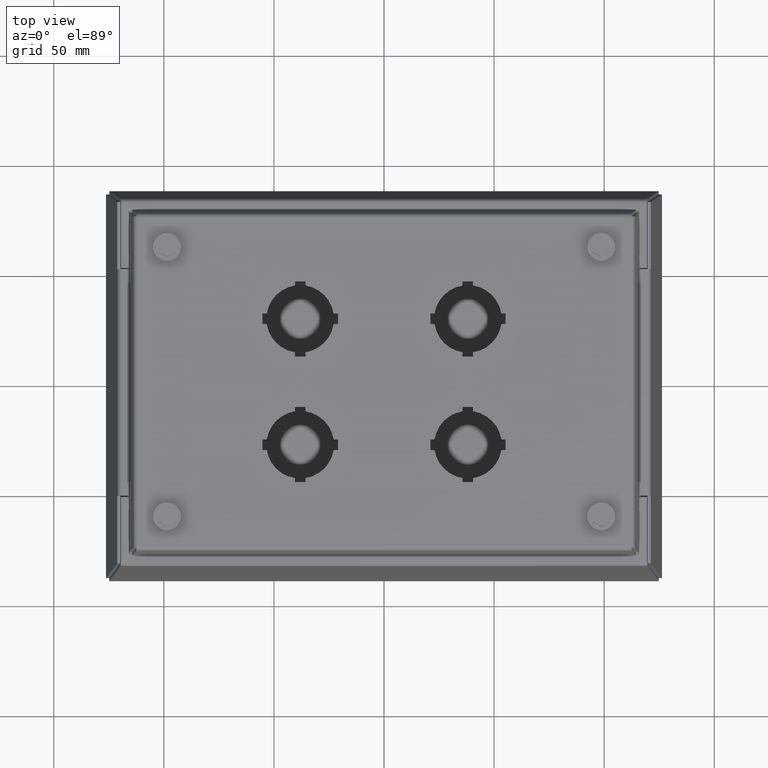
[diagram: clean part render]
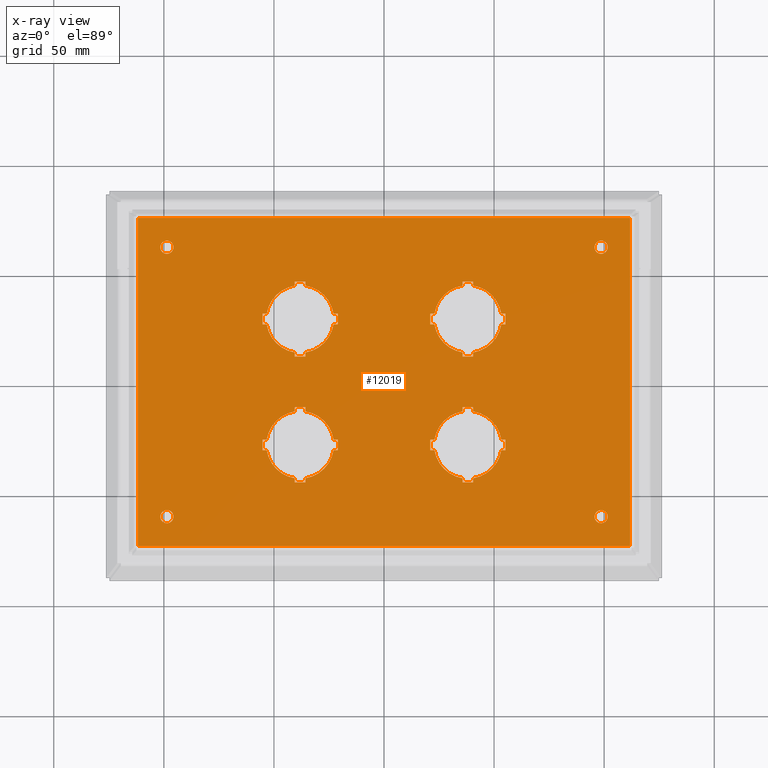
[diagram: x-ray — body ghosted, one internal face saturated and labeled with its STEP entity id]
A machine part, top view, then the same camera in x-ray: the body is ghosted and one INTERNAL B-rep face — a face not visible from any outside direction — is saturated and labeled: STEP entity #12019.
In plain terms, the highlighted planar face has unit normal (0, 0, -1).
Its self-contained STEP definition (entity closure, byte-faithful):
#37 = ORIENTED_EDGE ( 'NONE', *, *, #1536, .T. ) ;
#95 = EDGE_CURVE ( 'NONE', #11494, #2834, #1126, .T. ) ;
#138 = VERTEX_POINT ( 'NONE', #448 ) ;
#211 = ORIENTED_EDGE ( 'NONE', *, *, #6357, .T. ) ;
#215 = VERTEX_POINT ( 'NONE', #1704 ) ;
#245 = CARTESIAN_POINT ( 'NONE',  ( -3.883000000000000451, -2.409500000000000419, 4.474999999999999645 ) ) ;
#288 = VECTOR ( 'NONE', #6099, 39.37007874015748143 ) ;
#327 = CARTESIAN_POINT ( 'NONE',  ( 2.171999999999999709, 1.030000000000000027, 4.475000000000000533 ) ) ;
#346 = VECTOR ( 'NONE', #13794, 39.37007874015748143 ) ;
#385 = LINE ( 'NONE', #5066, #965 ) ;
#428 = ORIENTED_EDGE ( 'NONE', *, *, #1329, .T. ) ;
#434 = VECTOR ( 'NONE', #10299, 39.37007874015748143 ) ;
#435 = CARTESIAN_POINT ( 'NONE',  ( -0.9025052301484176587, 1.030000000000000027, 4.475000000000000533 ) ) ;
#448 = CARTESIAN_POINT ( 'NONE',  ( 0.8280000000000120597, 1.029999999999999805, 4.475000000000000533 ) ) ;
#453 = CIRCLE ( 'NONE', #4927, 0.6049999999999959854 ) ;
#496 = EDGE_LOOP ( 'NONE', ( #9526 ) ) ;
#562 = VERTEX_POINT ( 'NONE', #13361 ) ;
#569 = CARTESIAN_POINT ( 'NONE',  ( 1.595000000000004192, 3.006499999999999950, 4.475000000000000533 ) ) ;
#573 = CARTESIAN_POINT ( 'NONE',  ( 2.171999999999999709, 1.219999999999999751, 4.475000000000000533 ) ) ;
#584 = DIRECTION ( 'NONE',  ( -1.000000000000000000, -0.000000000000000000, -0.000000000000000000 ) ) ;
#636 = CARTESIAN_POINT ( 'NONE',  ( 1.405000000000004245, -1.796999999999996378, 4.475000000000000533 ) ) ;
#680 = CARTESIAN_POINT ( 'NONE',  ( 0.8280000000000120597, -1.030000000000000471, 4.475000000000000533 ) ) ;
#697 = EDGE_CURVE ( 'NONE', #7405, #7462, #9478, .T. ) ;
#706 = ORIENTED_EDGE ( 'NONE', *, *, #6515, .T. ) ;
#708 = AXIS2_PLACEMENT_3D ( 'NONE', #3196, #15098, #4530 ) ;
#745 = CARTESIAN_POINT ( 'NONE',  ( -1.500000000000000222, -1.125000000000000222, 4.475000000000000533 ) ) ;
#749 = CARTESIAN_POINT ( 'NONE',  ( 1.500000000000003997, 1.124999999999999778, 4.475000000000000533 ) ) ;
#788 = ORIENTED_EDGE ( 'NONE', *, *, #5558, .T. ) ;
#795 = LINE ( 'NONE', #6019, #288 ) ;
#801 = CARTESIAN_POINT ( 'NONE',  ( 0.9025052301484214334, 1.219999999999999751, 4.475000000000000533 ) ) ;
#803 = CARTESIAN_POINT ( 'NONE',  ( -1.404999999999999805, 3.006499999999999950, 4.475000000000000533 ) ) ;
#816 = CARTESIAN_POINT ( 'NONE',  ( -4.472999999999999865, 3.006499999999999950, 4.475000000000000533 ) ) ;
#880 = ORIENTED_EDGE ( 'NONE', *, *, #2976, .T. ) ;
#888 = DIRECTION ( 'NONE',  ( 3.612360983357727291E-15, 1.000000000000000000, 0.000000000000000000 ) ) ;
#965 = VECTOR ( 'NONE', #5142, 39.37007874015748143 ) ;
#1027 = ORIENTED_EDGE ( 'NONE', *, *, #8549, .T. ) ;
#1031 = DIRECTION ( 'NONE',  ( 0.000000000000000000, 1.000000000000000000, 0.000000000000000000 ) ) ;
#1054 = EDGE_CURVE ( 'NONE', #12107, #7405, #13160, .T. ) ;
#1086 = ORIENTED_EDGE ( 'NONE', *, *, #2337, .T. ) ;
#1126 = CIRCLE ( 'NONE', #9126, 0.6049999999999959854 ) ;
#1132 = LINE ( 'NONE', #12721, #10661 ) ;
#1159 = EDGE_CURVE ( 'NONE', #2191, #2913, #13365, .T. ) ;
#1169 = VECTOR ( 'NONE', #1771, 39.37007874015748143 ) ;
#1179 = VECTOR ( 'NONE', #9270, 39.37007874015748143 ) ;
#1196 = ORIENTED_EDGE ( 'NONE', *, *, #13595, .T. ) ;
#1197 = CARTESIAN_POINT ( 'NONE',  ( -1.594999999999995977, 0.4530000000000037330, 4.475000000000000533 ) ) ;
#1207 = EDGE_CURVE ( 'NONE', #1608, #9326, #4987, .T. ) ;
#1228 = DIRECTION ( 'NONE',  ( -0.000000000000000000, -1.000000000000000000, -1.224646799147350002E-16 ) ) ;
#1278 = LINE ( 'NONE', #6054, #12782 ) ;
#1329 = EDGE_CURVE ( 'NONE', #562, #14545, #7786, .T. ) ;
#1335 = CIRCLE ( 'NONE', #6084, 0.6049999999999960965 ) ;
#1337 = EDGE_CURVE ( 'NONE', #11963, #10132, #12499, .T. ) ;
#1341 = VECTOR ( 'NONE', #5581, 39.37007874015748143 ) ;
#1353 = EDGE_CURVE ( 'NONE', #15452, #3893, #8885, .T. ) ;
#1398 = DIRECTION ( 'NONE',  ( -1.000000000000000000, -0.000000000000000000, -0.000000000000000000 ) ) ;
#1414 = VERTEX_POINT ( 'NONE', #4572 ) ;
#1433 = FACE_OUTER_BOUND ( 'NONE', #3320, .T. ) ;
#1435 = EDGE_CURVE ( 'NONE', #10955, #11120, #1132, .T. ) ;
#1448 = CARTESIAN_POINT ( 'NONE',  ( -2.171999999999992159, 1.030000000000000027, 4.475000000000000533 ) ) ;
#1456 = LINE ( 'NONE', #13432, #1749 ) ;
#1482 = LINE ( 'NONE', #14854, #6447 ) ;
#1492 = AXIS2_PLACEMENT_3D ( 'NONE', #6428, #11349, #5319 ) ;
#1502 = CARTESIAN_POINT ( 'NONE',  ( -4.472999999999999865, 1.219999999999999751, 4.475000000000000533 ) ) ;
#1519 = VECTOR ( 'NONE', #5390, 39.37007874015748143 ) ;
#1524 = CARTESIAN_POINT ( 'NONE',  ( -1.404999999999999805, 3.006499999999999950, 4.475000000000000533 ) ) ;
#1536 = EDGE_CURVE ( 'NONE', #2913, #13760, #5599, .T. ) ;
#1566 = ORIENTED_EDGE ( 'NONE', *, *, #14661, .T. ) ;
#1596 = LINE ( 'NONE', #14891, #15336 ) ;
#1608 = VERTEX_POINT ( 'NONE', #9587 ) ;
#1643 = DIRECTION ( 'NONE',  ( 0.000000000000000000, 1.000000000000000000, 1.224646799147350002E-16 ) ) ;
#1678 = EDGE_CURVE ( 'NONE', #14056, #11668, #7463, .T. ) ;
#1704 = CARTESIAN_POINT ( 'NONE',  ( 1.405000000000004245, -1.722494769851582896, 4.475000000000000533 ) ) ;
#1737 = CARTESIAN_POINT ( 'NONE',  ( -1.404999999999999805, 0.4530000000000037330, 4.475000000000000533 ) ) ;
#1739 = EDGE_CURVE ( 'NONE', #12655, #5992, #453, .T. ) ;
#1741 = CARTESIAN_POINT ( 'NONE',  ( -1.594999999999995977, 1.722494769851582674, 4.475000000000000533 ) ) ;
#1748 = DIRECTION ( 'NONE',  ( -0.000000000000000000, -1.224646799147350002E-16, 1.000000000000000000 ) ) ;
#1749 = VECTOR ( 'NONE', #12548, 39.37007874015748143 ) ;
#1771 = DIRECTION ( 'NONE',  ( 1.000000000000000000, 0.000000000000000000, 0.000000000000000000 ) ) ;
#1786 = CARTESIAN_POINT ( 'NONE',  ( 3.883000000000000451, -2.409500000000000419, 4.474999999999999645 ) ) ;
#1816 = LINE ( 'NONE', #7760, #13044 ) ;
#1846 = CARTESIAN_POINT ( 'NONE',  ( 1.405000000000004023, 1.796999999999995934, 4.475000000000000533 ) ) ;
#1865 = ORIENTED_EDGE ( 'NONE', *, *, #1739, .T. ) ;
#1866 = AXIS2_PLACEMENT_3D ( 'NONE', #4869, #3695, #13333 ) ;
#1907 = ORIENTED_EDGE ( 'NONE', *, *, #3860, .T. ) ;
#1947 = AXIS2_PLACEMENT_3D ( 'NONE', #11411, #13904, #15154 ) ;
#1969 = CIRCLE ( 'NONE', #3219, 0.6049999999999959854 ) ;
#1971 = LINE ( 'NONE', #15193, #1341 ) ;
#1975 = ORIENTED_EDGE ( 'NONE', *, *, #15383, .T. ) ;
#2070 = CARTESIAN_POINT ( 'NONE',  ( -4.472999999999999865, -2.934337431718752942, 4.474999999999999645 ) ) ;
#2077 = ORIENTED_EDGE ( 'NONE', *, *, #15170, .T. ) ;
#2138 = ORIENTED_EDGE ( 'NONE', *, *, #3339, .T. ) ;
#2157 = EDGE_CURVE ( 'NONE', #14468, #13733, #8911, .T. ) ;
#2190 = DIRECTION ( 'NONE',  ( -0.000000000000000000, -1.224646799147350002E-16, 1.000000000000000000 ) ) ;
#2191 = VERTEX_POINT ( 'NONE', #13468 ) ;
#2216 = VECTOR ( 'NONE', #7378, 39.37007874015748143 ) ;
#2222 = DIRECTION ( 'NONE',  ( -0.000000000000000000, -1.000000000000000000, -1.224646799147350002E-16 ) ) ;
#2318 = CARTESIAN_POINT ( 'NONE',  ( -2.171999999999992159, -1.030000000000000471, 4.475000000000000533 ) ) ;
#2337 = EDGE_CURVE ( 'NONE', #10031, #215, #10681, .T. ) ;
#2349 = CARTESIAN_POINT ( 'NONE',  ( -0.8280000000000038440, 1.219999999999999751, 4.475000000000000533 ) ) ;
#2355 = VERTEX_POINT ( 'NONE', #9078 ) ;
#2365 = CARTESIAN_POINT ( 'NONE',  ( -4.400837431718739090, 2.934337431718760492, 4.474999999999991651 ) ) ;
#2408 = VERTEX_POINT ( 'NONE', #801 ) ;
#2459 = DIRECTION ( 'NONE',  ( 0.000000000000000000, 1.000000000000000000, 0.000000000000000000 ) ) ;
#2513 = CARTESIAN_POINT ( 'NONE',  ( -3.883000000000000451, 2.409499999999999975, 4.475000000000000533 ) ) ;
#2514 = ORIENTED_EDGE ( 'NONE', *, *, #7347, .T. ) ;
#2560 = EDGE_CURVE ( 'NONE', #215, #5530, #11268, .T. ) ;
#2572 = EDGE_LOOP ( 'NONE', ( #1196 ) ) ;
#2606 = LINE ( 'NONE', #9884, #2216 ) ;
#2626 = EDGE_CURVE ( 'NONE', #14647, #14647, #4689, .T. ) ;
#2637 = CARTESIAN_POINT ( 'NONE',  ( 4.400837431718741755, 3.006499999999999950, 4.475000000000000533 ) ) ;
#2648 = LINE ( 'NONE', #6258, #15254 ) ;
#2654 = LINE ( 'NONE', #14306, #7794 ) ;
#2658 = EDGE_CURVE ( 'NONE', #2355, #11494, #1482, .T. ) ;
#2669 = DIRECTION ( 'NONE',  ( 0.000000000000000000, -1.224646799147350002E-16, 1.000000000000000000 ) ) ;
#2671 = EDGE_CURVE ( 'NONE', #13122, #11963, #14184, .T. ) ;
#2707 = CARTESIAN_POINT ( 'NONE',  ( -1.594999999999995977, 3.006499999999999950, 4.475000000000000533 ) ) ;
#2742 = EDGE_CURVE ( 'NONE', #9914, #8634, #4430, .T. ) ;
#2766 = DIRECTION ( 'NONE',  ( -0.000000000000000000, -1.224646799147350002E-16, 1.000000000000000000 ) ) ;
#2775 = ORIENTED_EDGE ( 'NONE', *, *, #8264, .T. ) ;
#2792 = CARTESIAN_POINT ( 'NONE',  ( -0.8280000000000038440, 3.006499999999999950, 4.475000000000000533 ) ) ;
#2793 = CARTESIAN_POINT ( 'NONE',  ( -1.404999999999999805, -0.4530000000000044547, 4.475000000000000533 ) ) ;
#2834 = VERTEX_POINT ( 'NONE', #3724 ) ;
#2838 = FACE_BOUND ( 'NONE', #10325, .T. ) ;
#2895 = ORIENTED_EDGE ( 'NONE', *, *, #12041, .T. ) ;
#2901 = EDGE_CURVE ( 'NONE', #2408, #11256, #15315, .T. ) ;
#2913 = VERTEX_POINT ( 'NONE', #9523 ) ;
#2930 = DIRECTION ( 'NONE',  ( -0.000000000000000000, -1.224646799147350002E-16, 1.000000000000000000 ) ) ;
#2943 = DIRECTION ( 'NONE',  ( 9.030902458394316255E-16, 1.000000000000000000, 0.000000000000000000 ) ) ;
#2971 = DIRECTION ( 'NONE',  ( 1.000000000000000000, 0.000000000000000000, 0.000000000000000000 ) ) ;
#2976 = EDGE_CURVE ( 'NONE', #5839, #11377, #385, .T. ) ;
#3015 = LINE ( 'NONE', #13886, #14637 ) ;
#3090 = CARTESIAN_POINT ( 'NONE',  ( -0.9025052301484178807, -1.030000000000000471, 4.475000000000000533 ) ) ;
#3109 = ORIENTED_EDGE ( 'NONE', *, *, #7172, .T. ) ;
#3160 = VECTOR ( 'NONE', #3728, 39.37007874015748143 ) ;
#3162 = DIRECTION ( 'NONE',  ( 0.000000000000000000, 1.000000000000000000, 1.224646799147350002E-16 ) ) ;
#3167 = LINE ( 'NONE', #12724, #11265 ) ;
#3196 = CARTESIAN_POINT ( 'NONE',  ( 1.500000000000003997, -1.125000000000000222, 4.475000000000000533 ) ) ;
#3219 = AXIS2_PLACEMENT_3D ( 'NONE', #8355, #5952, #888 ) ;
#3239 = CARTESIAN_POINT ( 'NONE',  ( -4.472999999999999865, 2.934337431718759603, 4.475000000000000533 ) ) ;
#3262 = CIRCLE ( 'NONE', #14011, 0.1175000000000000488 ) ;
#3263 = DIRECTION ( 'NONE',  ( -0.000000000000000000, -1.000000000000000000, -1.224646799147350002E-16 ) ) ;
#3320 = EDGE_LOOP ( 'NONE', ( #7686, #11907, #11854, #37 ) ) ;
#3339 = EDGE_CURVE ( 'NONE', #12052, #15105, #5476, .T. ) ;
#3345 = CARTESIAN_POINT ( 'NONE',  ( 1.500000000000003997, 1.124999999999999778, 4.475000000000000533 ) ) ;
#3346 = LINE ( 'NONE', #11575, #11622 ) ;
#3395 = EDGE_CURVE ( 'NONE', #8634, #4793, #6989, .T. ) ;
#3449 = VERTEX_POINT ( 'NONE', #1197 ) ;
#3459 = CARTESIAN_POINT ( 'NONE',  ( 1.405000000000004245, 3.006499999999999950, 4.475000000000000533 ) ) ;
#3517 = DIRECTION ( 'NONE',  ( -1.000000000000000000, -0.000000000000000000, -0.000000000000000000 ) ) ;
#3560 = LINE ( 'NONE', #6853, #6988 ) ;
#3567 = EDGE_CURVE ( 'NONE', #7705, #12655, #5576, .T. ) ;
#3618 = CARTESIAN_POINT ( 'NONE',  ( 0.8280000000000120597, 3.006499999999999950, 4.475000000000000533 ) ) ;
#3623 = VERTEX_POINT ( 'NONE', #10727 ) ;
#3628 = CARTESIAN_POINT ( 'NONE',  ( 1.500000000000003997, -1.125000000000000222, 4.475000000000000533 ) ) ;
#3630 = DIRECTION ( 'NONE',  ( 0.000000000000000000, 1.000000000000000000, 1.224646799147350002E-16 ) ) ;
#3661 = CARTESIAN_POINT ( 'NONE',  ( -3.883000000000000451, 2.291999999999999815, 4.475000000000000533 ) ) ;
#3668 = CARTESIAN_POINT ( 'NONE',  ( 1.405000000000004023, -0.4530000000000044547, 4.475000000000000533 ) ) ;
#3690 = CARTESIAN_POINT ( 'NONE',  ( -2.097494769851582674, -1.030000000000000471, 4.475000000000000533 ) ) ;
#3695 = DIRECTION ( 'NONE',  ( -0.000000000000000000, -1.224646799147350002E-16, 1.000000000000000000 ) ) ;
#3713 = ORIENTED_EDGE ( 'NONE', *, *, #1054, .T. ) ;
#3724 = CARTESIAN_POINT ( 'NONE',  ( 2.097494769851586227, 1.030000000000000027, 4.475000000000000533 ) ) ;
#3728 = DIRECTION ( 'NONE',  ( 0.000000000000000000, 1.000000000000000000, 1.224646799147350002E-16 ) ) ;
#3747 = CARTESIAN_POINT ( 'NONE',  ( -1.404999999999999805, 0.5275052301484174366, 4.475000000000000533 ) ) ;
#3771 = VERTEX_POINT ( 'NONE', #9647 ) ;
#3783 = VECTOR ( 'NONE', #11413, 39.37007874015748143 ) ;
#3845 = CARTESIAN_POINT ( 'NONE',  ( 3.883000000000000451, 2.409499999999999975, 4.475000000000000533 ) ) ;
#3846 = VERTEX_POINT ( 'NONE', #8565 ) ;
#3856 = CARTESIAN_POINT ( 'NONE',  ( 2.097494769851586227, -1.030000000000000471, 4.475000000000000533 ) ) ;
#3860 = EDGE_CURVE ( 'NONE', #14350, #13122, #1456, .T. ) ;
#3893 = VERTEX_POINT ( 'NONE', #6241 ) ;
#3919 = AXIS2_PLACEMENT_3D ( 'NONE', #3345, #9444, #14214 ) ;
#3985 = ORIENTED_EDGE ( 'NONE', *, *, #8322, .T. ) ;
#3996 = CARTESIAN_POINT ( 'NONE',  ( -1.594999999999995977, -1.722494769851583341, 4.475000000000000533 ) ) ;
#4017 = FACE_BOUND ( 'NONE', #12082, .T. ) ;
#4057 = CARTESIAN_POINT ( 'NONE',  ( -4.400837431718740866, 3.006499999999999950, 4.475000000000000533 ) ) ;
#4122 = CARTESIAN_POINT ( 'NONE',  ( 1.500000000000003997, -1.125000000000000222, 4.475000000000000533 ) ) ;
#4153 = LINE ( 'NONE', #8918, #12488 ) ;
#4161 = EDGE_CURVE ( 'NONE', #3771, #3771, #14720, .T. ) ;
#4201 = VECTOR ( 'NONE', #5162, 39.37007874015748143 ) ;
#4253 = CARTESIAN_POINT ( 'NONE',  ( -1.594999999999995977, -0.5275052301484174366, 4.475000000000000533 ) ) ;
#4263 = CARTESIAN_POINT ( 'NONE',  ( -1.500000000000000222, 1.124999999999999778, 4.475000000000000533 ) ) ;
#4353 = ORIENTED_EDGE ( 'NONE', *, *, #10912, .T. ) ;
#4370 = VECTOR ( 'NONE', #4950, 39.37007874015748143 ) ;
#4402 = LINE ( 'NONE', #10280, #346 ) ;
#4416 = CARTESIAN_POINT ( 'NONE',  ( -1.594999999999995977, 1.796999999999995934, 4.475000000000000533 ) ) ;
#4430 = LINE ( 'NONE', #10234, #12213 ) ;
#4508 = LINE ( 'NONE', #5613, #12766 ) ;
#4530 = DIRECTION ( 'NONE',  ( 0.000000000000000000, 1.000000000000000000, 0.000000000000000000 ) ) ;
#4540 = EDGE_CURVE ( 'NONE', #11668, #7131, #15222, .T. ) ;
#4553 = CARTESIAN_POINT ( 'NONE',  ( 1.595000000000004636, -0.5275052301484178807, 4.475000000000000533 ) ) ;
#4560 = DIRECTION ( 'NONE',  ( 1.000000000000000000, 0.000000000000000000, 0.000000000000000000 ) ) ;
#4572 = CARTESIAN_POINT ( 'NONE',  ( -1.594999999999995977, 0.5275052301484168815, 4.475000000000000533 ) ) ;
#4608 = VECTOR ( 'NONE', #5891, 39.37007874015748143 ) ;
#4689 = CIRCLE ( 'NONE', #11961, 0.1175000000000000488 ) ;
#4723 = VERTEX_POINT ( 'NONE', #1448 ) ;
#4752 = VECTOR ( 'NONE', #6292, 39.37007874015748143 ) ;
#4793 = VERTEX_POINT ( 'NONE', #4253 ) ;
#4821 = VECTOR ( 'NONE', #6850, 39.37007874015748143 ) ;
#4822 = DIRECTION ( 'NONE',  ( -1.000000000000000000, -0.000000000000000000, -0.000000000000000000 ) ) ;
#4835 = DIRECTION ( 'NONE',  ( 0.000000000000000000, -1.224646799147350002E-16, 1.000000000000000000 ) ) ;
#4847 = ORIENTED_EDGE ( 'NONE', *, *, #14423, .T. ) ;
#4853 = CARTESIAN_POINT ( 'NONE',  ( 2.171999999999999709, -1.220000000000000417, 4.475000000000000533 ) ) ;
#4869 = CARTESIAN_POINT ( 'NONE',  ( -1.500000000000000222, -1.125000000000000222, 4.475000000000000533 ) ) ;
#4871 = DIRECTION ( 'NONE',  ( 1.000000000000000000, 0.000000000000000000, 0.000000000000000000 ) ) ;
#4902 = CIRCLE ( 'NONE', #12819, 0.6049999999999960965 ) ;
#4927 = AXIS2_PLACEMENT_3D ( 'NONE', #13569, #1748, #8865 ) ;
#4949 = EDGE_CURVE ( 'NONE', #7506, #10412, #11497, .T. ) ;
#4950 = DIRECTION ( 'NONE',  ( 0.000000000000000000, 1.000000000000000000, 1.224646799147350002E-16 ) ) ;
#4962 = DIRECTION ( 'NONE',  ( 0.000000000000000000, 1.000000000000000000, 0.000000000000000000 ) ) ;
#4974 = VECTOR ( 'NONE', #11295, 39.37007874015748143 ) ;
#4987 = LINE ( 'NONE', #2792, #3160 ) ;
#4990 = ORIENTED_EDGE ( 'NONE', *, *, #1678, .T. ) ;
#5008 = ORIENTED_EDGE ( 'NONE', *, *, #5864, .T. ) ;
#5066 = CARTESIAN_POINT ( 'NONE',  ( -4.472999999999999865, -1.796999999999996378, 4.475000000000000533 ) ) ;
#5091 = ORIENTED_EDGE ( 'NONE', *, *, #9597, .T. ) ;
#5139 = EDGE_CURVE ( 'NONE', #11256, #138, #10822, .T. ) ;
#5142 = DIRECTION ( 'NONE',  ( 1.000000000000000000, 0.000000000000000000, 0.000000000000000000 ) ) ;
#5143 = ORIENTED_EDGE ( 'NONE', *, *, #8159, .T. ) ;
#5162 = DIRECTION ( 'NONE',  ( -0.000000000000000000, -1.000000000000000000, -1.224646799147350002E-16 ) ) ;
#5283 = AXIS2_PLACEMENT_3D ( 'NONE', #816, #7907, #12547 ) ;
#5319 = DIRECTION ( 'NONE',  ( 9.030902458394316255E-16, 1.000000000000000000, 0.000000000000000000 ) ) ;
#5344 = DIRECTION ( 'NONE',  ( -0.000000000000000000, -1.224646799147350002E-16, 1.000000000000000000 ) ) ;
#5387 = ORIENTED_EDGE ( 'NONE', *, *, #1337, .T. ) ;
#5390 = DIRECTION ( 'NONE',  ( 1.000000000000000000, 0.000000000000000000, 0.000000000000000000 ) ) ;
#5423 = DIRECTION ( 'NONE',  ( 9.030902458394316255E-16, 1.000000000000000000, 0.000000000000000000 ) ) ;
#5447 = ORIENTED_EDGE ( 'NONE', *, *, #7175, .T. ) ;
#5460 = CARTESIAN_POINT ( 'NONE',  ( -4.472999999999999865, -1.030000000000000471, 4.475000000000000533 ) ) ;
#5476 = CIRCLE ( 'NONE', #14208, 0.6049999999999959854 ) ;
#5487 = VERTEX_POINT ( 'NONE', #6365 ) ;
#5530 = VERTEX_POINT ( 'NONE', #636 ) ;
#5544 = LINE ( 'NONE', #5460, #12136 ) ;
#5558 = EDGE_CURVE ( 'NONE', #138, #12107, #7734, .T. ) ;
#5576 = LINE ( 'NONE', #6965, #8201 ) ;
#5581 = DIRECTION ( 'NONE',  ( 1.000000000000000000, 0.000000000000000000, 0.000000000000000000 ) ) ;
#5599 = LINE ( 'NONE', #2070, #1179 ) ;
#5613 = CARTESIAN_POINT ( 'NONE',  ( -4.472999999999999865, 0.4530000000000037885, 4.475000000000000533 ) ) ;
#5617 = VERTEX_POINT ( 'NONE', #9300 ) ;
#5748 = EDGE_CURVE ( 'NONE', #13040, #3846, #795, .T. ) ;
#5806 = EDGE_CURVE ( 'NONE', #5487, #5487, #3262, .T. ) ;
#5836 = AXIS2_PLACEMENT_3D ( 'NONE', #14664, #2766, #2459 ) ;
#5839 = VERTEX_POINT ( 'NONE', #10789 ) ;
#5864 = EDGE_CURVE ( 'NONE', #3893, #12654, #2648, .T. ) ;
#5891 = DIRECTION ( 'NONE',  ( 0.000000000000000000, 1.000000000000000000, 1.224646799147350002E-16 ) ) ;
#5906 = CARTESIAN_POINT ( 'NONE',  ( 0.9025052301484217665, -1.220000000000000639, 4.475000000000000533 ) ) ;
#5952 = DIRECTION ( 'NONE',  ( -0.000000000000000000, -1.224646799147350002E-16, 1.000000000000000000 ) ) ;
#5992 = VERTEX_POINT ( 'NONE', #15057 ) ;
#6019 = CARTESIAN_POINT ( 'NONE',  ( 0.8280000000000120597, 3.006499999999999950, 4.475000000000000533 ) ) ;
#6048 = CARTESIAN_POINT ( 'NONE',  ( 0.9025052301484214334, -1.030000000000000471, 4.475000000000000533 ) ) ;
#6054 = CARTESIAN_POINT ( 'NONE',  ( -4.472999999999999865, -1.796999999999996378, 4.475000000000000533 ) ) ;
#6062 = CARTESIAN_POINT ( 'NONE',  ( 1.595000000000003304, -1.796999999999996378, 4.475000000000000533 ) ) ;
#6084 = AXIS2_PLACEMENT_3D ( 'NONE', #3628, #10996, #4962 ) ;
#6099 = DIRECTION ( 'NONE',  ( -0.000000000000000000, -1.000000000000000000, -1.224646799147350002E-16 ) ) ;
#6113 = VERTEX_POINT ( 'NONE', #9261 ) ;
#6193 = VECTOR ( 'NONE', #10324, 39.37007874015748143 ) ;
#6199 = EDGE_CURVE ( 'NONE', #11120, #9710, #10435, .T. ) ;
#6241 = CARTESIAN_POINT ( 'NONE',  ( 1.595000000000004192, -0.4530000000000044547, 4.475000000000000533 ) ) ;
#6258 = CARTESIAN_POINT ( 'NONE',  ( -4.472999999999999865, -0.4530000000000045102, 4.475000000000000533 ) ) ;
#6292 = DIRECTION ( 'NONE',  ( -0.000000000000000000, -1.000000000000000000, -1.224646799147350002E-16 ) ) ;
#6319 = VERTEX_POINT ( 'NONE', #3856 ) ;
#6357 = EDGE_CURVE ( 'NONE', #5530, #11478, #1278, .T. ) ;
#6365 = CARTESIAN_POINT ( 'NONE',  ( -3.883000000000000451, -2.527000000000000579, 4.474999999999999645 ) ) ;
#6413 = LINE ( 'NONE', #4057, #12013 ) ;
#6428 = CARTESIAN_POINT ( 'NONE',  ( -1.500000000000000222, -1.125000000000000222, 4.475000000000000533 ) ) ;
#6447 = VECTOR ( 'NONE', #11337, 39.37007874015748143 ) ;
#6468 = CARTESIAN_POINT ( 'NONE',  ( -4.472999999999999865, 1.030000000000000027, 4.475000000000000533 ) ) ;
#6490 = LINE ( 'NONE', #14856, #13776 ) ;
#6515 = EDGE_CURVE ( 'NONE', #4793, #10447, #11048, .T. ) ;
#6519 = LINE ( 'NONE', #10109, #4974 ) ;
#6582 = EDGE_CURVE ( 'NONE', #12654, #7506, #6490, .T. ) ;
#6633 = EDGE_CURVE ( 'NONE', #12373, #5839, #10083, .T. ) ;
#6709 = VECTOR ( 'NONE', #4822, 39.37007874015748143 ) ;
#6746 = AXIS2_PLACEMENT_3D ( 'NONE', #14174, #10507, #7055 ) ;
#6759 = ORIENTED_EDGE ( 'NONE', *, *, #2901, .T. ) ;
#6771 = CARTESIAN_POINT ( 'NONE',  ( -1.404999999999999805, -1.796999999999996378, 4.475000000000000533 ) ) ;
#6814 = VECTOR ( 'NONE', #3517, 39.37007874015748143 ) ;
#6850 = DIRECTION ( 'NONE',  ( 1.000000000000000000, 0.000000000000000000, 0.000000000000000000 ) ) ;
#6853 = CARTESIAN_POINT ( 'NONE',  ( -4.472999999999999865, -1.220000000000000417, 4.475000000000000533 ) ) ;
#6874 = ORIENTED_EDGE ( 'NONE', *, *, #2658, .T. ) ;
#6876 = ORIENTED_EDGE ( 'NONE', *, *, #2560, .T. ) ;
#6918 = CARTESIAN_POINT ( 'NONE',  ( -1.594999999999995977, 3.006499999999999950, 4.475000000000000533 ) ) ;
#6965 = CARTESIAN_POINT ( 'NONE',  ( -4.472999999999999865, 1.219999999999999751, 4.475000000000000533 ) ) ;
#6988 = VECTOR ( 'NONE', #14118, 39.37007874015748143 ) ;
#6989 = LINE ( 'NONE', #6918, #10480 ) ;
#7003 = ORIENTED_EDGE ( 'NONE', *, *, #14714, .T. ) ;
#7052 = DIRECTION ( 'NONE',  ( -0.000000000000000000, -1.000000000000000000, -1.224646799147350002E-16 ) ) ;
#7055 = DIRECTION ( 'NONE',  ( 0.000000000000000000, 1.000000000000000000, 0.000000000000000000 ) ) ;
#7064 = ORIENTED_EDGE ( 'NONE', *, *, #95, .T. ) ;
#7110 = ORIENTED_EDGE ( 'NONE', *, *, #5748, .T. ) ;
#7131 = VERTEX_POINT ( 'NONE', #4416 ) ;
#7136 = EDGE_CURVE ( 'NONE', #8315, #2191, #13964, .T. ) ;
#7165 = CARTESIAN_POINT ( 'NONE',  ( -2.171999999999992159, -1.220000000000000195, 4.475000000000000533 ) ) ;
#7172 = EDGE_CURVE ( 'NONE', #8750, #562, #1335, .T. ) ;
#7175 = EDGE_CURVE ( 'NONE', #5617, #2408, #14075, .T. ) ;
#7255 = ORIENTED_EDGE ( 'NONE', *, *, #8768, .T. ) ;
#7282 = VECTOR ( 'NONE', #4560, 39.37007874015748143 ) ;
#7310 = CARTESIAN_POINT ( 'NONE',  ( 1.595000000000004192, 0.5275052301484173256, 4.475000000000000533 ) ) ;
#7347 = EDGE_CURVE ( 'NONE', #1414, #3449, #1596, .T. ) ;
#7376 = ORIENTED_EDGE ( 'NONE', *, *, #10424, .T. ) ;
#7378 = DIRECTION ( 'NONE',  ( -0.000000000000000000, -1.000000000000000000, -1.224646799147350002E-16 ) ) ;
#7405 = VERTEX_POINT ( 'NONE', #11448 ) ;
#7421 = CARTESIAN_POINT ( 'NONE',  ( 2.097494769851586227, 1.219999999999999751, 4.475000000000000533 ) ) ;
#7462 = VERTEX_POINT ( 'NONE', #11767 ) ;
#7463 = LINE ( 'NONE', #1524, #12188 ) ;
#7495 = DIRECTION ( 'NONE',  ( 0.000000000000000000, 1.000000000000000000, 1.224646799147350002E-16 ) ) ;
#7506 = VERTEX_POINT ( 'NONE', #12701 ) ;
#7538 = AXIS2_PLACEMENT_3D ( 'NONE', #12921, #2190, #1031 ) ;
#7553 = EDGE_CURVE ( 'NONE', #2834, #13773, #1971, .T. ) ;
#7580 = CARTESIAN_POINT ( 'NONE',  ( 1.405000000000004245, 3.006499999999999950, 4.475000000000000533 ) ) ;
#7686 = ORIENTED_EDGE ( 'NONE', *, *, #10805, .T. ) ;
#7705 = VERTEX_POINT ( 'NONE', #573 ) ;
#7733 = EDGE_LOOP ( 'NONE', ( #428, #14334, #8233, #9378, #9707, #5008, #11224, #10634, #1975, #7110, #9919, #1086, #6876, #211, #2775, #3109 ) ) ;
#7734 = LINE ( 'NONE', #11280, #1519 ) ;
#7760 = CARTESIAN_POINT ( 'NONE',  ( -4.472999999999999865, 1.219999999999999751, 4.475000000000000533 ) ) ;
#7786 = LINE ( 'NONE', #12427, #434 ) ;
#7794 = VECTOR ( 'NONE', #10796, 39.37007874015748143 ) ;
#7833 = FACE_BOUND ( 'NONE', #7733, .T. ) ;
#7835 = DIRECTION ( 'NONE',  ( -1.000000000000000000, -0.000000000000000000, -0.000000000000000000 ) ) ;
#7851 = DIRECTION ( 'NONE',  ( -0.000000000000000000, -1.224646799147350002E-16, 1.000000000000000000 ) ) ;
#7907 = DIRECTION ( 'NONE',  ( 0.000000000000000000, 1.224646799147350002E-16, -1.000000000000000000 ) ) ;
#7985 = CARTESIAN_POINT ( 'NONE',  ( -0.9025052301484176587, -1.220000000000000417, 4.475000000000000533 ) ) ;
#8023 = ORIENTED_EDGE ( 'NONE', *, *, #2671, .T. ) ;
#8111 = DIRECTION ( 'NONE',  ( 0.000000000000000000, 1.000000000000000000, 1.224646799147350002E-16 ) ) ;
#8159 = EDGE_CURVE ( 'NONE', #8692, #1414, #11871, .T. ) ;
#8179 = AXIS2_PLACEMENT_3D ( 'NONE', #2513, #13318, #9864 ) ;
#8201 = VECTOR ( 'NONE', #7835, 39.37007874015748143 ) ;
#8233 = ORIENTED_EDGE ( 'NONE', *, *, #15060, .T. ) ;
#8264 = EDGE_CURVE ( 'NONE', #11478, #8750, #9488, .T. ) ;
#8303 = EDGE_CURVE ( 'NONE', #9968, #3623, #11363, .T. ) ;
#8315 = VERTEX_POINT ( 'NONE', #2365 ) ;
#8322 = EDGE_CURVE ( 'NONE', #10132, #14468, #12085, .T. ) ;
#8328 = ORIENTED_EDGE ( 'NONE', *, *, #12511, .T. ) ;
#8341 = CARTESIAN_POINT ( 'NONE',  ( -0.9025052301484178807, 1.219999999999999751, 4.475000000000000533 ) ) ;
#8350 = VERTEX_POINT ( 'NONE', #9725 ) ;
#8355 = CARTESIAN_POINT ( 'NONE',  ( -1.500000000000000222, 1.124999999999999778, 4.475000000000000533 ) ) ;
#8433 = VERTEX_POINT ( 'NONE', #10182 ) ;
#8541 = CARTESIAN_POINT ( 'NONE',  ( -0.8280000000000038440, 3.006499999999999950, 4.475000000000000533 ) ) ;
#8549 = EDGE_CURVE ( 'NONE', #10447, #10955, #5544, .T. ) ;
#8557 = VERTEX_POINT ( 'NONE', #11725 ) ;
#8565 = CARTESIAN_POINT ( 'NONE',  ( 0.8280000000000120597, -1.220000000000000862, 4.475000000000000533 ) ) ;
#8634 = VERTEX_POINT ( 'NONE', #15466 ) ;
#8692 = VERTEX_POINT ( 'NONE', #12277 ) ;
#8736 = VECTOR ( 'NONE', #1643, 39.37007874015748143 ) ;
#8750 = VERTEX_POINT ( 'NONE', #12718 ) ;
#8768 = EDGE_CURVE ( 'NONE', #13773, #7705, #3015, .T. ) ;
#8781 = FACE_BOUND ( 'NONE', #10200, .T. ) ;
#8793 = DIRECTION ( 'NONE',  ( -1.000000000000000000, -0.000000000000000000, -0.000000000000000000 ) ) ;
#8865 = DIRECTION ( 'NONE',  ( 3.612360983357727291E-15, 1.000000000000000000, 0.000000000000000000 ) ) ;
#8885 = LINE ( 'NONE', #10215, #15413 ) ;
#8911 = LINE ( 'NONE', #1502, #6193 ) ;
#8918 = CARTESIAN_POINT ( 'NONE',  ( -4.472999999999999865, 0.4530000000000037885, 4.475000000000000533 ) ) ;
#8932 = PLANE ( 'NONE',  #5283 ) ;
#9069 = ORIENTED_EDGE ( 'NONE', *, *, #14167, .T. ) ;
#9078 = CARTESIAN_POINT ( 'NONE',  ( 1.595000000000003082, 0.4530000000000037330, 4.475000000000000533 ) ) ;
#9082 = EDGE_CURVE ( 'NONE', #3623, #9914, #11747, .T. ) ;
#9126 = AXIS2_PLACEMENT_3D ( 'NONE', #749, #12559, #13799 ) ;
#9153 = LINE ( 'NONE', #15407, #6814 ) ;
#9261 = CARTESIAN_POINT ( 'NONE',  ( 2.171999999999999709, -1.030000000000000471, 4.475000000000000533 ) ) ;
#9270 = DIRECTION ( 'NONE',  ( -1.000000000000000000, -0.000000000000000000, -0.000000000000000000 ) ) ;
#9300 = CARTESIAN_POINT ( 'NONE',  ( 1.405000000000004245, 1.722494769851582008, 4.475000000000000533 ) ) ;
#9326 = VERTEX_POINT ( 'NONE', #13228 ) ;
#9331 = ORIENTED_EDGE ( 'NONE', *, *, #3567, .T. ) ;
#9378 = ORIENTED_EDGE ( 'NONE', *, *, #9887, .T. ) ;
#9437 = DIRECTION ( 'NONE',  ( 1.000000000000000000, 0.000000000000000000, 0.000000000000000000 ) ) ;
#9444 = DIRECTION ( 'NONE',  ( -0.000000000000000000, -1.224646799147350002E-16, 1.000000000000000000 ) ) ;
#9478 = LINE ( 'NONE', #13243, #10647 ) ;
#9479 = CIRCLE ( 'NONE', #1492, 0.6049999999999960965 ) ;
#9488 = LINE ( 'NONE', #10903, #4370 ) ;
#9523 = CARTESIAN_POINT ( 'NONE',  ( 4.400837431718744419, -2.934337431718724076, 4.474999999999999645 ) ) ;
#9526 = ORIENTED_EDGE ( 'NONE', *, *, #5806, .T. ) ;
#9540 = EDGE_CURVE ( 'NONE', #14545, #6113, #3346, .T. ) ;
#9571 = ORIENTED_EDGE ( 'NONE', *, *, #2742, .T. ) ;
#9587 = CARTESIAN_POINT ( 'NONE',  ( -0.8280000000000038440, -1.220000000000000417, 4.475000000000000533 ) ) ;
#9597 = EDGE_CURVE ( 'NONE', #9326, #9968, #11730, .T. ) ;
#9639 = DIRECTION ( 'NONE',  ( -0.000000000000000000, -1.000000000000000000, -1.224646799147350002E-16 ) ) ;
#9647 = CARTESIAN_POINT ( 'NONE',  ( 3.883000000000000451, 2.291999999999999815, 4.475000000000000533 ) ) ;
#9706 = ORIENTED_EDGE ( 'NONE', *, *, #15384, .T. ) ;
#9707 = ORIENTED_EDGE ( 'NONE', *, *, #1353, .T. ) ;
#9710 = VERTEX_POINT ( 'NONE', #13057 ) ;
#9723 = ORIENTED_EDGE ( 'NONE', *, *, #11171, .T. ) ;
#9725 = CARTESIAN_POINT ( 'NONE',  ( 1.595000000000004192, 1.796999999999995934, 4.475000000000000533 ) ) ;
#9757 = ORIENTED_EDGE ( 'NONE', *, *, #12642, .T. ) ;
#9774 = CARTESIAN_POINT ( 'NONE',  ( -4.400837431718743531, -2.934337431718745837, 4.475000000000004086 ) ) ;
#9858 = VERTEX_POINT ( 'NONE', #1846 ) ;
#9864 = DIRECTION ( 'NONE',  ( 0.000000000000000000, -1.000000000000000000, 0.000000000000000000 ) ) ;
#9879 = ORIENTED_EDGE ( 'NONE', *, *, #1435, .T. ) ;
#9884 = CARTESIAN_POINT ( 'NONE',  ( -2.171999999999992159, 3.006499999999999950, 4.475000000000000533 ) ) ;
#9887 = EDGE_CURVE ( 'NONE', #6319, #15452, #4902, .T. ) ;
#9905 = VECTOR ( 'NONE', #8111, 39.37007874015748143 ) ;
#9914 = VERTEX_POINT ( 'NONE', #2793 ) ;
#9919 = ORIENTED_EDGE ( 'NONE', *, *, #10308, .T. ) ;
#9956 = FACE_BOUND ( 'NONE', #11184, .T. ) ;
#9962 = DIRECTION ( 'NONE',  ( -0.000000000000000000, -1.000000000000000000, -1.224646799147350002E-16 ) ) ;
#9968 = VERTEX_POINT ( 'NONE', #3090 ) ;
#10003 = VECTOR ( 'NONE', #8793, 39.37007874015748143 ) ;
#10031 = VERTEX_POINT ( 'NONE', #5906 ) ;
#10083 = LINE ( 'NONE', #11489, #3783 ) ;
#10109 = CARTESIAN_POINT ( 'NONE',  ( -1.404999999999999805, 3.006499999999999950, 4.475000000000000533 ) ) ;
#10132 = VERTEX_POINT ( 'NONE', #11305 ) ;
#10182 = CARTESIAN_POINT ( 'NONE',  ( -2.171999999999992159, 1.219999999999999751, 4.475000000000000533 ) ) ;
#10200 = EDGE_LOOP ( 'NONE', ( #2077, #14675, #5091, #11329, #13852, #9571, #13577, #706, #1027, #9879, #14453, #9706, #12165, #880, #15339, #7003 ) ) ;
#10215 = CARTESIAN_POINT ( 'NONE',  ( 1.595000000000004192, 3.006499999999999950, 4.475000000000000533 ) ) ;
#10234 = CARTESIAN_POINT ( 'NONE',  ( -4.472999999999999865, -0.4530000000000045102, 4.475000000000000533 ) ) ;
#10255 = VECTOR ( 'NONE', #7052, 39.37007874015748143 ) ;
#10280 = CARTESIAN_POINT ( 'NONE',  ( -4.472999999999999865, -1.220000000000000417, 4.475000000000000533 ) ) ;
#10299 = DIRECTION ( 'NONE',  ( 1.000000000000000000, 0.000000000000000000, 0.000000000000000000 ) ) ;
#10308 = EDGE_CURVE ( 'NONE', #3846, #10031, #4402, .T. ) ;
#10323 = ORIENTED_EDGE ( 'NONE', *, *, #4161, .T. ) ;
#10324 = DIRECTION ( 'NONE',  ( -1.000000000000000000, -0.000000000000000000, -0.000000000000000000 ) ) ;
#10325 = EDGE_LOOP ( 'NONE', ( #5387, #3985, #11127, #4847, #4990, #14278, #9723, #2138, #2895, #9069, #9757, #5143, #2514, #4353, #1907, #8023 ) ) ;
#10395 = CARTESIAN_POINT ( 'NONE',  ( -4.472999999999999865, -1.030000000000000471, 4.475000000000000533 ) ) ;
#10412 = VERTEX_POINT ( 'NONE', #6048 ) ;
#10424 = EDGE_CURVE ( 'NONE', #9858, #5617, #13167, .T. ) ;
#10435 = LINE ( 'NONE', #10512, #7282 ) ;
#10447 = VERTEX_POINT ( 'NONE', #3690 ) ;
#10480 = VECTOR ( 'NONE', #11701, 39.37007874015748143 ) ;
#10507 = DIRECTION ( 'NONE',  ( -0.000000000000000000, -1.224646799147350002E-16, 1.000000000000000000 ) ) ;
#10512 = CARTESIAN_POINT ( 'NONE',  ( -4.472999999999999865, -1.220000000000000417, 4.475000000000000533 ) ) ;
#10530 = DIRECTION ( 'NONE',  ( -1.000000000000000000, -0.000000000000000000, -0.000000000000000000 ) ) ;
#10541 = DIRECTION ( 'NONE',  ( -1.000000000000000000, -0.000000000000000000, -0.000000000000000000 ) ) ;
#10600 = CARTESIAN_POINT ( 'NONE',  ( -2.097494769851582674, 1.219999999999999751, 4.475000000000000533 ) ) ;
#10634 = ORIENTED_EDGE ( 'NONE', *, *, #4949, .T. ) ;
#10647 = VECTOR ( 'NONE', #9639, 39.37007874015748143 ) ;
#10661 = VECTOR ( 'NONE', #2222, 39.37007874015748143 ) ;
#10681 = CIRCLE ( 'NONE', #708, 0.6049999999999960965 ) ;
#10727 = CARTESIAN_POINT ( 'NONE',  ( -1.404999999999999805, -0.5275052301484178807, 4.475000000000000533 ) ) ;
#10775 = CARTESIAN_POINT ( 'NONE',  ( -4.472999999999999865, 1.219999999999999751, 4.475000000000000533 ) ) ;
#10789 = CARTESIAN_POINT ( 'NONE',  ( -1.594999999999995977, -1.796999999999996378, 4.475000000000000533 ) ) ;
#10796 = DIRECTION ( 'NONE',  ( 1.000000000000000000, 0.000000000000000000, 0.000000000000000000 ) ) ;
#10805 = EDGE_CURVE ( 'NONE', #13760, #8315, #6413, .T. ) ;
#10822 = LINE ( 'NONE', #3618, #4752 ) ;
#10869 = DIRECTION ( 'NONE',  ( 0.000000000000000000, -1.000000000000000000, 0.000000000000000000 ) ) ;
#10903 = CARTESIAN_POINT ( 'NONE',  ( 1.595000000000004192, 3.006499999999999950, 4.475000000000000533 ) ) ;
#10912 = EDGE_CURVE ( 'NONE', #3449, #14350, #4508, .T. ) ;
#10955 = VERTEX_POINT ( 'NONE', #2318 ) ;
#10996 = DIRECTION ( 'NONE',  ( -0.000000000000000000, -1.224646799147350002E-16, 1.000000000000000000 ) ) ;
#11012 = AXIS2_PLACEMENT_3D ( 'NONE', #3845, #2669, #14326 ) ;
#11048 = CIRCLE ( 'NONE', #7538, 0.6049999999999960965 ) ;
#11069 = FACE_BOUND ( 'NONE', #14385, .T. ) ;
#11120 = VERTEX_POINT ( 'NONE', #7165 ) ;
#11127 = ORIENTED_EDGE ( 'NONE', *, *, #2157, .T. ) ;
#11171 = EDGE_CURVE ( 'NONE', #7131, #12052, #13433, .T. ) ;
#11184 = EDGE_LOOP ( 'NONE', ( #10323 ) ) ;
#11224 = ORIENTED_EDGE ( 'NONE', *, *, #6582, .T. ) ;
#11230 = ORIENTED_EDGE ( 'NONE', *, *, #7553, .T. ) ;
#11256 = VERTEX_POINT ( 'NONE', #14682 ) ;
#11265 = VECTOR ( 'NONE', #12955, 39.37007874015748143 ) ;
#11268 = LINE ( 'NONE', #7580, #4201 ) ;
#11280 = CARTESIAN_POINT ( 'NONE',  ( -4.472999999999999865, 1.030000000000000027, 4.475000000000000533 ) ) ;
#11295 = DIRECTION ( 'NONE',  ( 0.000000000000000000, 1.000000000000000000, 1.224646799147350002E-16 ) ) ;
#11305 = CARTESIAN_POINT ( 'NONE',  ( -0.8280000000000038440, 1.030000000000000027, 4.475000000000000533 ) ) ;
#11322 = DIRECTION ( 'NONE',  ( 0.000000000000000000, 1.000000000000000000, 1.224646799147350002E-16 ) ) ;
#11329 = ORIENTED_EDGE ( 'NONE', *, *, #8303, .T. ) ;
#11337 = DIRECTION ( 'NONE',  ( 0.000000000000000000, 1.000000000000000000, 1.224646799147350002E-16 ) ) ;
#11349 = DIRECTION ( 'NONE',  ( -0.000000000000000000, -1.224646799147350002E-16, 1.000000000000000000 ) ) ;
#11363 = CIRCLE ( 'NONE', #1866, 0.6049999999999960965 ) ;
#11371 = VECTOR ( 'NONE', #11652, 39.37007874015748143 ) ;
#11377 = VERTEX_POINT ( 'NONE', #6771 ) ;
#11411 = CARTESIAN_POINT ( 'NONE',  ( -1.500000000000000222, 1.124999999999999778, 4.475000000000000533 ) ) ;
#11413 = DIRECTION ( 'NONE',  ( -0.000000000000000000, -1.000000000000000000, -1.224646799147350002E-16 ) ) ;
#11448 = CARTESIAN_POINT ( 'NONE',  ( 1.405000000000004245, 0.5275052301484172146, 4.475000000000000533 ) ) ;
#11478 = VERTEX_POINT ( 'NONE', #6062 ) ;
#11489 = CARTESIAN_POINT ( 'NONE',  ( -1.594999999999995977, 3.006499999999999950, 4.475000000000000533 ) ) ;
#11494 = VERTEX_POINT ( 'NONE', #7310 ) ;
#11497 = CIRCLE ( 'NONE', #6746, 0.6049999999999960965 ) ;
#11509 = VECTOR ( 'NONE', #14444, 39.37007874015748143 ) ;
#11539 = DIRECTION ( 'NONE',  ( 0.000000000000000000, 1.000000000000000000, 0.000000000000000000 ) ) ;
#11575 = CARTESIAN_POINT ( 'NONE',  ( 2.171999999999999709, 3.006499999999999950, 4.475000000000000533 ) ) ;
#11612 = AXIS2_PLACEMENT_3D ( 'NONE', #13951, #7851, #11539 ) ;
#11622 = VECTOR ( 'NONE', #13911, 39.37007874015748143 ) ;
#11652 = DIRECTION ( 'NONE',  ( -1.000000000000000000, -0.000000000000000000, -0.000000000000000000 ) ) ;
#11668 = VERTEX_POINT ( 'NONE', #12252 ) ;
#11692 = VERTEX_POINT ( 'NONE', #7985 ) ;
#11701 = DIRECTION ( 'NONE',  ( -0.000000000000000000, -1.000000000000000000, -1.224646799147350002E-16 ) ) ;
#11712 = CARTESIAN_POINT ( 'NONE',  ( -4.472999999999999865, 1.796999999999995934, 4.475000000000000533 ) ) ;
#11725 = CARTESIAN_POINT ( 'NONE',  ( -1.404999999999999805, -1.722494769851582452, 4.475000000000000533 ) ) ;
#11730 = LINE ( 'NONE', #10395, #11371 ) ;
#11747 = LINE ( 'NONE', #803, #9905 ) ;
#11767 = CARTESIAN_POINT ( 'NONE',  ( 1.405000000000004245, 0.4530000000000037330, 4.475000000000000533 ) ) ;
#11854 = ORIENTED_EDGE ( 'NONE', *, *, #1159, .T. ) ;
#11871 = CIRCLE ( 'NONE', #11612, 0.6049999999999959854 ) ;
#11907 = ORIENTED_EDGE ( 'NONE', *, *, #7136, .T. ) ;
#11961 = AXIS2_PLACEMENT_3D ( 'NONE', #1786, #13386, #14704 ) ;
#11963 = VERTEX_POINT ( 'NONE', #435 ) ;
#12012 = CARTESIAN_POINT ( 'NONE',  ( -1.404999999999999805, 1.722494769851582452, 4.475000000000000533 ) ) ;
#12013 = VECTOR ( 'NONE', #7495, 39.37007874015748143 ) ;
#12016 = CIRCLE ( 'NONE', #14482, 0.6049999999999960965 ) ;
#12019 = ADVANCED_FACE ( 'NONE', ( #1433, #13415, #11069, #9956, #14736, #4017, #8781, #2838, #7833 ), #8932, .T. ) ;
#12041 = EDGE_CURVE ( 'NONE', #15105, #8433, #1816, .T. ) ;
#12052 = VERTEX_POINT ( 'NONE', #1741 ) ;
#12054 = VERTEX_POINT ( 'NONE', #3661 ) ;
#12082 = EDGE_LOOP ( 'NONE', ( #11230, #7255, #9331, #1865, #14996, #8328, #7376, #5447, #6759, #13502, #788, #3713, #13411, #1566, #6874, #7064 ) ) ;
#12085 = LINE ( 'NONE', #8541, #4608 ) ;
#12107 = VERTEX_POINT ( 'NONE', #14813 ) ;
#12136 = VECTOR ( 'NONE', #15084, 39.37007874015748143 ) ;
#12165 = ORIENTED_EDGE ( 'NONE', *, *, #6633, .T. ) ;
#12188 = VECTOR ( 'NONE', #3630, 39.37007874015748143 ) ;
#12213 = VECTOR ( 'NONE', #10541, 39.37007874015748143 ) ;
#12252 = CARTESIAN_POINT ( 'NONE',  ( -1.404999999999999805, 1.796999999999995934, 4.475000000000000533 ) ) ;
#12277 = CARTESIAN_POINT ( 'NONE',  ( -2.097494769851582230, 1.030000000000000027, 4.475000000000000533 ) ) ;
#12345 = DIRECTION ( 'NONE',  ( 0.000000000000000000, 1.000000000000000000, 0.000000000000000000 ) ) ;
#12373 = VERTEX_POINT ( 'NONE', #3996 ) ;
#12427 = CARTESIAN_POINT ( 'NONE',  ( -4.472999999999999865, -1.220000000000000417, 4.475000000000000533 ) ) ;
#12488 = VECTOR ( 'NONE', #2971, 39.37007874015748143 ) ;
#12499 = LINE ( 'NONE', #6468, #1169 ) ;
#12511 = EDGE_CURVE ( 'NONE', #8350, #9858, #9153, .T. ) ;
#12547 = DIRECTION ( 'NONE',  ( 0.000000000000000000, 1.000000000000000000, 1.224646799147350002E-16 ) ) ;
#12548 = DIRECTION ( 'NONE',  ( 0.000000000000000000, 1.000000000000000000, 1.224646799147350002E-16 ) ) ;
#12555 = LINE ( 'NONE', #13639, #10003 ) ;
#12559 = DIRECTION ( 'NONE',  ( -0.000000000000000000, -1.224646799147350002E-16, 1.000000000000000000 ) ) ;
#12642 = EDGE_CURVE ( 'NONE', #4723, #8692, #2654, .T. ) ;
#12654 = VERTEX_POINT ( 'NONE', #3668 ) ;
#12655 = VERTEX_POINT ( 'NONE', #7421 ) ;
#12672 = VECTOR ( 'NONE', #1228, 39.37007874015748143 ) ;
#12701 = CARTESIAN_POINT ( 'NONE',  ( 1.405000000000004245, -0.5275052301484179917, 4.475000000000000533 ) ) ;
#12709 = CIRCLE ( 'NONE', #8179, 0.1175000000000000488 ) ;
#12718 = CARTESIAN_POINT ( 'NONE',  ( 1.595000000000004192, -1.722494769851582452, 4.475000000000000533 ) ) ;
#12721 = CARTESIAN_POINT ( 'NONE',  ( -2.171999999999992159, 3.006499999999999950, 4.475000000000000533 ) ) ;
#12724 = CARTESIAN_POINT ( 'NONE',  ( -4.472999999999999865, -1.030000000000000471, 4.475000000000000533 ) ) ;
#12766 = VECTOR ( 'NONE', #9437, 39.37007874015748143 ) ;
#12782 = VECTOR ( 'NONE', #4871, 39.37007874015748143 ) ;
#12819 = AXIS2_PLACEMENT_3D ( 'NONE', #4122, #13658, #2943 ) ;
#12921 = CARTESIAN_POINT ( 'NONE',  ( -1.500000000000000222, -1.125000000000000222, 4.475000000000000533 ) ) ;
#12955 = DIRECTION ( 'NONE',  ( -1.000000000000000000, -0.000000000000000000, -0.000000000000000000 ) ) ;
#13040 = VERTEX_POINT ( 'NONE', #680 ) ;
#13044 = VECTOR ( 'NONE', #584, 39.37007874015748143 ) ;
#13057 = CARTESIAN_POINT ( 'NONE',  ( -2.097494769851582230, -1.220000000000000639, 4.475000000000000533 ) ) ;
#13122 = VERTEX_POINT ( 'NONE', #3747 ) ;
#13160 = CIRCLE ( 'NONE', #3919, 0.6049999999999959854 ) ;
#13167 = LINE ( 'NONE', #3459, #10255 ) ;
#13228 = CARTESIAN_POINT ( 'NONE',  ( -0.8280000000000038440, -1.030000000000000471, 4.475000000000000533 ) ) ;
#13243 = CARTESIAN_POINT ( 'NONE',  ( 1.405000000000004245, 3.006499999999999950, 4.475000000000000533 ) ) ;
#13318 = DIRECTION ( 'NONE',  ( 0.000000000000000000, -1.224646799147350002E-16, 1.000000000000000000 ) ) ;
#13333 = DIRECTION ( 'NONE',  ( 9.030902458394316255E-16, 1.000000000000000000, 0.000000000000000000 ) ) ;
#13361 = CARTESIAN_POINT ( 'NONE',  ( 2.097494769851586227, -1.219999999999999751, 4.475000000000000533 ) ) ;
#13365 = LINE ( 'NONE', #2637, #12672 ) ;
#13386 = DIRECTION ( 'NONE',  ( 0.000000000000000000, -1.224646799147350002E-16, 1.000000000000000000 ) ) ;
#13404 = CARTESIAN_POINT ( 'NONE',  ( 3.883000000000000451, -2.527000000000000579, 4.474999999999999645 ) ) ;
#13411 = ORIENTED_EDGE ( 'NONE', *, *, #697, .T. ) ;
#13415 = FACE_BOUND ( 'NONE', #496, .T. ) ;
#13432 = CARTESIAN_POINT ( 'NONE',  ( -1.404999999999999805, 3.006499999999999950, 4.475000000000000533 ) ) ;
#13433 = LINE ( 'NONE', #2707, #11509 ) ;
#13468 = CARTESIAN_POINT ( 'NONE',  ( 4.400837431718770176, 2.934337431718730738, 4.475000000000000533 ) ) ;
#13502 = ORIENTED_EDGE ( 'NONE', *, *, #5139, .T. ) ;
#13569 = CARTESIAN_POINT ( 'NONE',  ( 1.500000000000003997, 1.124999999999999778, 4.475000000000000533 ) ) ;
#13577 = ORIENTED_EDGE ( 'NONE', *, *, #3395, .T. ) ;
#13595 = EDGE_CURVE ( 'NONE', #12054, #12054, #12709, .T. ) ;
#13639 = CARTESIAN_POINT ( 'NONE',  ( -4.472999999999999865, -1.030000000000000471, 4.475000000000000533 ) ) ;
#13658 = DIRECTION ( 'NONE',  ( -0.000000000000000000, -1.224646799147350002E-16, 1.000000000000000000 ) ) ;
#13685 = LINE ( 'NONE', #569, #8736 ) ;
#13733 = VERTEX_POINT ( 'NONE', #8341 ) ;
#13760 = VERTEX_POINT ( 'NONE', #9774 ) ;
#13773 = VERTEX_POINT ( 'NONE', #327 ) ;
#13776 = VECTOR ( 'NONE', #3263, 39.37007874015748143 ) ;
#13794 = DIRECTION ( 'NONE',  ( 1.000000000000000000, 0.000000000000000000, 0.000000000000000000 ) ) ;
#13799 = DIRECTION ( 'NONE',  ( 0.000000000000000000, 1.000000000000000000, 0.000000000000000000 ) ) ;
#13852 = ORIENTED_EDGE ( 'NONE', *, *, #9082, .T. ) ;
#13886 = CARTESIAN_POINT ( 'NONE',  ( 2.171999999999999709, 3.006499999999999950, 4.475000000000000533 ) ) ;
#13904 = DIRECTION ( 'NONE',  ( -0.000000000000000000, -1.224646799147350002E-16, 1.000000000000000000 ) ) ;
#13911 = DIRECTION ( 'NONE',  ( 0.000000000000000000, 1.000000000000000000, 1.224646799147350002E-16 ) ) ;
#13951 = CARTESIAN_POINT ( 'NONE',  ( -1.500000000000000222, 1.124999999999999778, 4.475000000000000533 ) ) ;
#13964 = LINE ( 'NONE', #3239, #4821 ) ;
#14011 = AXIS2_PLACEMENT_3D ( 'NONE', #245, #4835, #10869 ) ;
#14056 = VERTEX_POINT ( 'NONE', #12012 ) ;
#14075 = CIRCLE ( 'NONE', #5836, 0.6049999999999959854 ) ;
#14118 = DIRECTION ( 'NONE',  ( 1.000000000000000000, 0.000000000000000000, 0.000000000000000000 ) ) ;
#14167 = EDGE_CURVE ( 'NONE', #8433, #4723, #2606, .T. ) ;
#14174 = CARTESIAN_POINT ( 'NONE',  ( 1.500000000000003997, -1.125000000000000222, 4.475000000000000533 ) ) ;
#14184 = CIRCLE ( 'NONE', #1947, 0.6049999999999959854 ) ;
#14208 = AXIS2_PLACEMENT_3D ( 'NONE', #4263, #2930, #12345 ) ;
#14214 = DIRECTION ( 'NONE',  ( 0.000000000000000000, 1.000000000000000000, 0.000000000000000000 ) ) ;
#14278 = ORIENTED_EDGE ( 'NONE', *, *, #4540, .T. ) ;
#14306 = CARTESIAN_POINT ( 'NONE',  ( -4.472999999999999865, 1.030000000000000027, 4.475000000000000533 ) ) ;
#14326 = DIRECTION ( 'NONE',  ( 0.000000000000000000, -1.000000000000000000, 0.000000000000000000 ) ) ;
#14334 = ORIENTED_EDGE ( 'NONE', *, *, #9540, .T. ) ;
#14350 = VERTEX_POINT ( 'NONE', #1737 ) ;
#14364 = EDGE_CURVE ( 'NONE', #11377, #8557, #6519, .T. ) ;
#14385 = EDGE_LOOP ( 'NONE', ( #14638 ) ) ;
#14423 = EDGE_CURVE ( 'NONE', #13733, #14056, #1969, .T. ) ;
#14444 = DIRECTION ( 'NONE',  ( -0.000000000000000000, -1.000000000000000000, -1.224646799147350002E-16 ) ) ;
#14453 = ORIENTED_EDGE ( 'NONE', *, *, #6199, .T. ) ;
#14468 = VERTEX_POINT ( 'NONE', #2349 ) ;
#14482 = AXIS2_PLACEMENT_3D ( 'NONE', #745, #5344, #5423 ) ;
#14545 = VERTEX_POINT ( 'NONE', #4853 ) ;
#14637 = VECTOR ( 'NONE', #3162, 39.37007874015748143 ) ;
#14638 = ORIENTED_EDGE ( 'NONE', *, *, #2626, .T. ) ;
#14647 = VERTEX_POINT ( 'NONE', #13404 ) ;
#14661 = EDGE_CURVE ( 'NONE', #7462, #2355, #4153, .T. ) ;
#14664 = CARTESIAN_POINT ( 'NONE',  ( 1.500000000000003997, 1.124999999999999778, 4.475000000000000533 ) ) ;
#14675 = ORIENTED_EDGE ( 'NONE', *, *, #1207, .T. ) ;
#14682 = CARTESIAN_POINT ( 'NONE',  ( 0.8280000000000120597, 1.219999999999999751, 4.475000000000000533 ) ) ;
#14699 = EDGE_CURVE ( 'NONE', #5992, #8350, #13685, .T. ) ;
#14704 = DIRECTION ( 'NONE',  ( 0.000000000000000000, -1.000000000000000000, 0.000000000000000000 ) ) ;
#14714 = EDGE_CURVE ( 'NONE', #8557, #11692, #9479, .T. ) ;
#14720 = CIRCLE ( 'NONE', #11012, 0.1175000000000000488 ) ;
#14735 = VECTOR ( 'NONE', #10530, 39.37007874015748143 ) ;
#14736 = FACE_BOUND ( 'NONE', #2572, .T. ) ;
#14813 = CARTESIAN_POINT ( 'NONE',  ( 0.9025052301484217665, 1.030000000000000027, 4.475000000000000533 ) ) ;
#14854 = CARTESIAN_POINT ( 'NONE',  ( 1.595000000000004192, 3.006499999999999950, 4.475000000000000533 ) ) ;
#14856 = CARTESIAN_POINT ( 'NONE',  ( 1.405000000000004245, 3.006499999999999950, 4.475000000000000533 ) ) ;
#14891 = CARTESIAN_POINT ( 'NONE',  ( -1.594999999999995977, 3.006499999999999950, 4.475000000000000533 ) ) ;
#14996 = ORIENTED_EDGE ( 'NONE', *, *, #14699, .T. ) ;
#15057 = CARTESIAN_POINT ( 'NONE',  ( 1.595000000000005302, 1.722494769851582452, 4.475000000000000533 ) ) ;
#15060 = EDGE_CURVE ( 'NONE', #6113, #6319, #3167, .T. ) ;
#15084 = DIRECTION ( 'NONE',  ( -1.000000000000000000, -0.000000000000000000, -0.000000000000000000 ) ) ;
#15098 = DIRECTION ( 'NONE',  ( -0.000000000000000000, -1.224646799147350002E-16, 1.000000000000000000 ) ) ;
#15105 = VERTEX_POINT ( 'NONE', #10600 ) ;
#15154 = DIRECTION ( 'NONE',  ( 0.000000000000000000, 1.000000000000000000, 0.000000000000000000 ) ) ;
#15170 = EDGE_CURVE ( 'NONE', #11692, #1608, #3560, .T. ) ;
#15193 = CARTESIAN_POINT ( 'NONE',  ( -4.472999999999999865, 1.030000000000000027, 4.475000000000000533 ) ) ;
#15222 = LINE ( 'NONE', #11712, #14735 ) ;
#15254 = VECTOR ( 'NONE', #1398, 39.37007874015748143 ) ;
#15315 = LINE ( 'NONE', #10775, #6709 ) ;
#15336 = VECTOR ( 'NONE', #9962, 39.37007874015748143 ) ;
#15339 = ORIENTED_EDGE ( 'NONE', *, *, #14364, .T. ) ;
#15383 = EDGE_CURVE ( 'NONE', #10412, #13040, #12555, .T. ) ;
#15384 = EDGE_CURVE ( 'NONE', #9710, #12373, #12016, .T. ) ;
#15407 = CARTESIAN_POINT ( 'NONE',  ( -4.472999999999999865, 1.796999999999995934, 4.475000000000000533 ) ) ;
#15413 = VECTOR ( 'NONE', #11322, 39.37007874015748143 ) ;
#15452 = VERTEX_POINT ( 'NONE', #4553 ) ;
#15466 = CARTESIAN_POINT ( 'NONE',  ( -1.594999999999995977, -0.4530000000000044547, 4.475000000000000533 ) ) ;